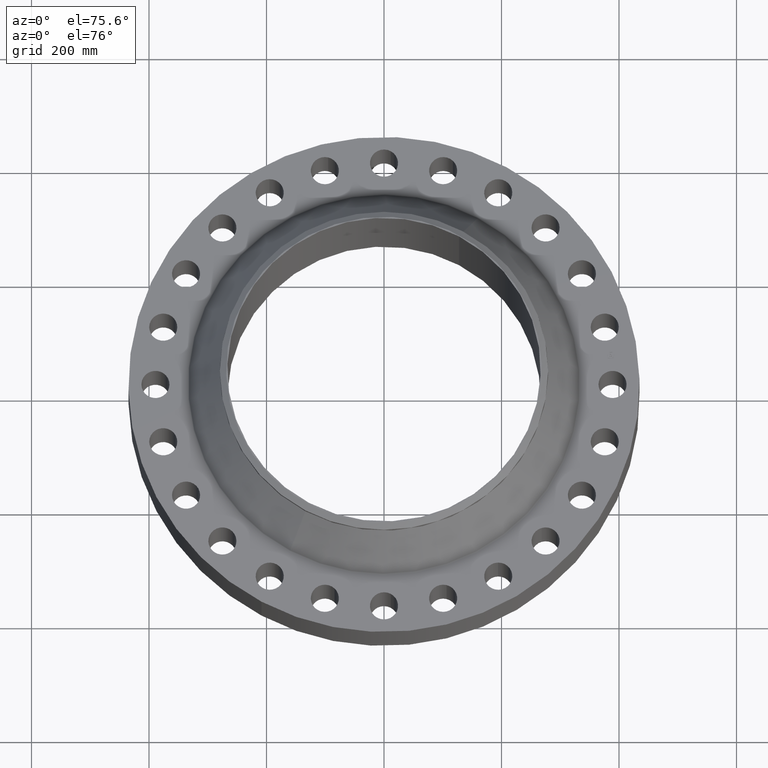
[diagram: clean part render]
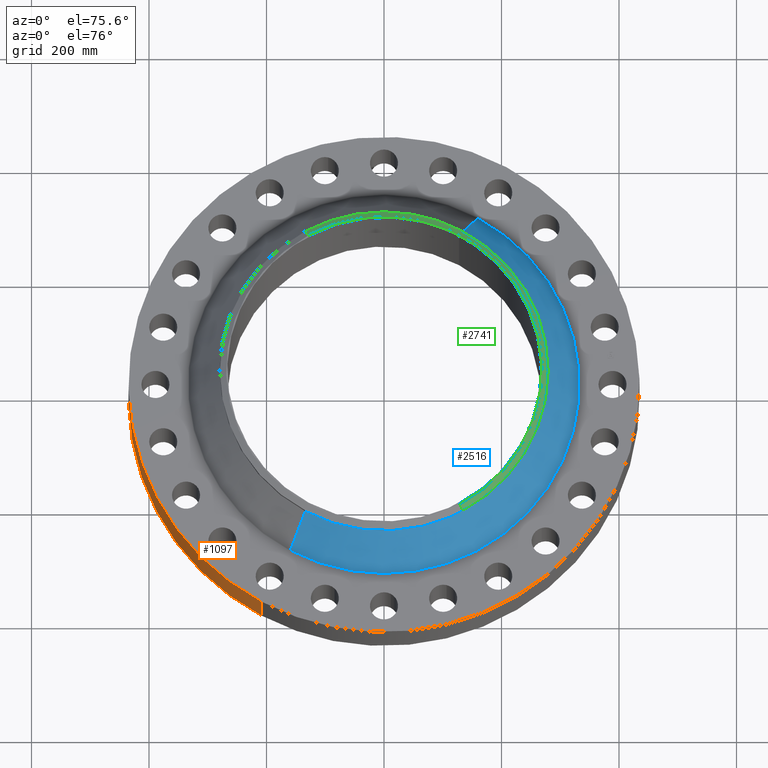
[diagram: same view with three faces highlighted in distinct colors, each labeled with its STEP entity id]
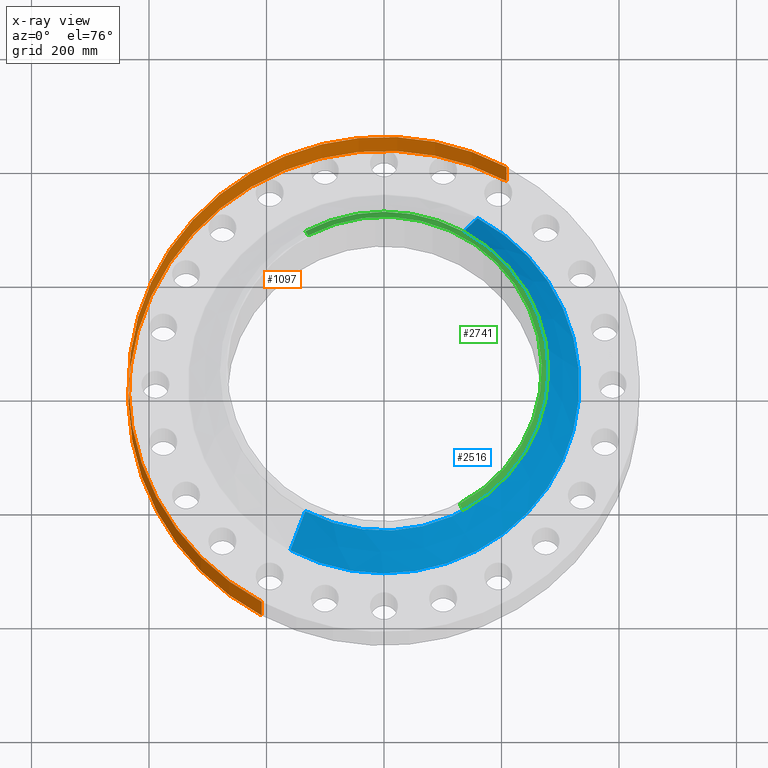
[diagram: x-ray of the same camera — body ghosted, the three highlighted faces saturated]
A machine part, auxiliary view with three faces highlighted in distinct colors.
The next image is the same camera in x-ray (body ghosted, the three faces saturated) — at least one of them is partly hidden behind the body in this view.
Their STEP definitions:

[orange] entity #1097 — the highlighted cylindrical surface (partial cylindrical patch) has radius 434.975 mm, axis along (0, 0, -1).
#131=AXIS2_PLACEMENT_3D('Circle Axis2P3D',#129,#130,$) ;
#607=AXIS2_PLACEMENT_3D('Circle Axis2P3D',#605,#606,$) ;
#1079=AXIS2_PLACEMENT_3D('Cylinder Axis2P3D',#1076,#1077,#1078) ;
#129=CARTESIAN_POINT('Axis2P3D Location',(-4.36642498186E-011,1.65226362775E-011,0.)) ;
#133=CARTESIAN_POINT('Vertex',(-8.21016234866,-15.0286013725,-9.33440551451E-012)) ;
#135=CARTESIAN_POINT('Vertex',(8.21016234865,15.0286013725,-9.33440551451E-012)) ;
#600=CARTESIAN_POINT('Vertex',(8.21016234865,15.0286013725,3.74999999999)) ;
#602=CARTESIAN_POINT('Vertex',(-8.21016234865,-15.0286013725,3.74999999999)) ;
#605=CARTESIAN_POINT('Axis2P3D Location',(-1.28188623321E-011,1.16640905158E-011,3.75000000002)) ;
#1076=CARTESIAN_POINT('Axis2P3D Location',(0.,0.,3.87500000002)) ;
#1081=CARTESIAN_POINT('Line Origine',(-8.21016234865,-15.0286013725,1.87499999999)) ;
#1086=CARTESIAN_POINT('Line Origine',(8.21016234865,15.0286013725,1.87499999999)) ;
#130=DIRECTION('Axis2P3D Direction',(0.,0.,-0.0393700787402)) ;
#606=DIRECTION('Axis2P3D Direction',(0.,0.,-0.0393700787402)) ;
#1077=DIRECTION('Axis2P3D Direction',(0.,0.,-0.0393700787402)) ;
#1078=DIRECTION('Axis2P3D XDirection',(-0.0188750212049,-0.0345504945626,0.)) ;
#1082=DIRECTION('Vector Direction',(0.,0.,-0.0393700787402)) ;
#1087=DIRECTION('Vector Direction',(0.,0.,-0.0393700787402)) ;
#1083=VECTOR('Line Direction',#1082,0.0393700787402) ;
#1088=VECTOR('Line Direction',#1087,0.0393700787402) ;
#1092=ORIENTED_EDGE('',*,*,#137,.F.) ;
#1093=ORIENTED_EDGE('',*,*,#1085,.T.) ;
#1094=ORIENTED_EDGE('',*,*,#609,.T.) ;
#1095=ORIENTED_EDGE('',*,*,#1090,.F.) ;
#1097=ADVANCED_FACE('PartBody',(#1096),#1080,.T.) ;
#132=CIRCLE('generated circle',#131,17.1250000001) ;
#608=CIRCLE('generated circle',#607,17.1250000001) ;
#1080=CYLINDRICAL_SURFACE('generated cylinder',#1079,17.1250000001) ;
#137=EDGE_CURVE('',#134,#136,#132,.T.) ;
#609=EDGE_CURVE('',#603,#601,#608,.T.) ;
#1085=EDGE_CURVE('',#134,#603,#1084,.F.) ;
#1090=EDGE_CURVE('',#136,#601,#1089,.F.) ;
#1091=EDGE_LOOP('',(#1092,#1093,#1094,#1095)) ;
#1096=FACE_OUTER_BOUND('',#1091,.T.) ;
#1084=LINE('Line',#1081,#1083) ;
#1089=LINE('Line',#1086,#1088) ;
#134=VERTEX_POINT('',#133) ;
#136=VERTEX_POINT('',#135) ;
#601=VERTEX_POINT('',#600) ;
#603=VERTEX_POINT('',#602) ;

[blue] entity #2516 — the highlighted conical surface has half-angle 31.701 deg.
#2335=AXIS2_PLACEMENT_3D('Circle Axis2P3D',#2333,#2334,$) ;
#2503=AXIS2_PLACEMENT_3D('Cone Axis2P3D',#2500,#2501,#2502) ;
#2507=AXIS2_PLACEMENT_3D('Circle Axis2P3D',#2505,#2506,$) ;
#2299=CARTESIAN_POINT('Vertex',(-6.2755991667,-11.487407221,3.80694164096)) ;
#2306=CARTESIAN_POINT('Vertex',(6.27559916672,11.487407221,3.80694164094)) ;
#2333=CARTESIAN_POINT('Axis2P3D Location',(0.,0.,3.80694164094)) ;
#2467=CARTESIAN_POINT('Line Origine',(-5.77464004567,-10.5704077009,5.4987385612)) ;
#2471=CARTESIAN_POINT('Vertex',(-5.27368092465,-9.65340818079,7.19053548147)) ;
#2478=CARTESIAN_POINT('Vertex',(5.27368092466,9.6534081808,7.19053548145)) ;
#2481=CARTESIAN_POINT('Line Origine',(5.77464004567,10.5704077009,5.4987385612)) ;
#2500=CARTESIAN_POINT('Axis2P3D Location',(0.,0.,7.19053548147)) ;
#2505=CARTESIAN_POINT('Axis2P3D Location',(0.,0.,7.19053548147)) ;
#2334=DIRECTION('Axis2P3D Direction',(-0.,0.,-0.0393700787402)) ;
#2468=DIRECTION('Vector Direction',(-0.00991856553729,-0.018155812433,-0.033496143548)) ;
#2482=DIRECTION('Vector Direction',(0.00991856553729,0.018155812433,-0.033496143548)) ;
#2501=DIRECTION('Axis2P3D Direction',(0.,0.,-0.0393700787402)) ;
#2502=DIRECTION('Axis2P3D XDirection',(0.0188750212049,0.0345504945626,0.)) ;
#2506=DIRECTION('Axis2P3D Direction',(-0.,0.,-0.0393700787402)) ;
#2469=VECTOR('Line Direction',#2468,0.0393700787402) ;
#2483=VECTOR('Line Direction',#2482,0.0393700787402) ;
#2511=ORIENTED_EDGE('',*,*,#2337,.F.) ;
#2512=ORIENTED_EDGE('',*,*,#2485,.T.) ;
#2513=ORIENTED_EDGE('',*,*,#2509,.T.) ;
#2514=ORIENTED_EDGE('',*,*,#2473,.F.) ;
#2516=ADVANCED_FACE('PartBody',(#2515),#2504,.T.) ;
#2336=CIRCLE('generated circle',#2335,13.0898307691) ;
#2508=CIRCLE('generated circle',#2507,11.) ;
#2504=CONICAL_SURFACE('Cone',#2503,11.,0.553286620585) ;
#2337=EDGE_CURVE('',#2307,#2300,#2336,.T.) ;
#2473=EDGE_CURVE('',#2300,#2472,#2470,.F.) ;
#2485=EDGE_CURVE('',#2307,#2479,#2484,.F.) ;
#2509=EDGE_CURVE('',#2479,#2472,#2508,.T.) ;
#2510=EDGE_LOOP('',(#2511,#2512,#2513,#2514)) ;
#2515=FACE_OUTER_BOUND('',#2510,.T.) ;
#2470=LINE('Line',#2467,#2469) ;
#2484=LINE('Line',#2481,#2483) ;
#2300=VERTEX_POINT('',#2299) ;
#2307=VERTEX_POINT('',#2306) ;
#2472=VERTEX_POINT('',#2471) ;
#2479=VERTEX_POINT('',#2478) ;

[green] entity #2741 — the highlighted conical surface has half-angle 52.5 deg.
#2434=AXIS2_PLACEMENT_3D('Circle Axis2P3D',#2432,#2433,$) ;
#2706=AXIS2_PLACEMENT_3D('Cone Axis2P3D',#2703,#2704,#2705) ;
#2724=AXIS2_PLACEMENT_3D('Circle Axis2P3D',#2722,#2723,$) ;
#2731=AXIS2_PLACEMENT_3D('Circle Axis2P3D',#2729,#2730,$) ;
#2432=CARTESIAN_POINT('Axis2P3D Location',(0.,-1.46651544801E-011,7.75000000003)) ;
#2436=CARTESIAN_POINT('Vertex',(5.07171819777,-9.283717889,7.75000000002)) ;
#2438=CARTESIAN_POINT('Vertex',(-5.07171819777,9.28371788899,7.75000000003)) ;
#2703=CARTESIAN_POINT('Axis2P3D Location',(0.,0.,7.75000000003)) ;
#2708=CARTESIAN_POINT('Line Origine',(-5.17269956122,9.46856303491,7.58837797697)) ;
#2712=CARTESIAN_POINT('Vertex',(-5.27368092465,9.65340818079,7.42675595388)) ;
#2715=CARTESIAN_POINT('Line Origine',(5.17269956122,-9.46856303491,7.58837797697)) ;
#2719=CARTESIAN_POINT('Vertex',(5.27368092465,-9.6534081808,7.42675595392)) ;
#2722=CARTESIAN_POINT('Axis2P3D Location',(0.,0.,7.42675595392)) ;
#2726=CARTESIAN_POINT('Vertex',(5.27368092465,9.65340818079,7.42675595388)) ;
#2729=CARTESIAN_POINT('Axis2P3D Location',(0.,0.,7.42675595392)) ;
#2433=DIRECTION('Axis2P3D Direction',(0.,0.,-0.0393700787402)) ;
#2704=DIRECTION('Axis2P3D Direction',(-0.,-0.,-0.0393700787402)) ;
#2705=DIRECTION('Axis2P3D XDirection',(-0.0188750212049,0.0345504945626,0.)) ;
#2709=DIRECTION('Vector Direction',(-0.014974561121,0.02741075027,-0.023966985394)) ;
#2716=DIRECTION('Vector Direction',(0.014974561121,-0.02741075027,-0.023966985394)) ;
#2723=DIRECTION('Axis2P3D Direction',(-0.,0.,-0.0393700787402)) ;
#2730=DIRECTION('Axis2P3D Direction',(-0.,0.,-0.0393700787402)) ;
#2710=VECTOR('Line Direction',#2709,0.0393700787402) ;
#2717=VECTOR('Line Direction',#2716,0.0393700787402) ;
#2735=ORIENTED_EDGE('',*,*,#2714,.F.) ;
#2736=ORIENTED_EDGE('',*,*,#2440,.F.) ;
#2737=ORIENTED_EDGE('',*,*,#2721,.T.) ;
#2738=ORIENTED_EDGE('',*,*,#2728,.T.) ;
#2739=ORIENTED_EDGE('',*,*,#2733,.F.) ;
#2741=ADVANCED_FACE('PartBody',(#2740),#2707,.T.) ;
#2435=CIRCLE('generated circle',#2434,10.5787401575) ;
#2725=CIRCLE('generated circle',#2724,11.) ;
#2732=CIRCLE('generated circle',#2731,11.) ;
#2707=CONICAL_SURFACE('Cone',#2706,10.5787401575,0.916297857297) ;
#2440=EDGE_CURVE('',#2437,#2439,#2435,.F.) ;
#2714=EDGE_CURVE('',#2439,#2713,#2711,.T.) ;
#2721=EDGE_CURVE('',#2437,#2720,#2718,.T.) ;
#2728=EDGE_CURVE('',#2720,#2727,#2725,.F.) ;
#2733=EDGE_CURVE('',#2713,#2727,#2732,.T.) ;
#2734=EDGE_LOOP('',(#2735,#2736,#2737,#2738,#2739)) ;
#2740=FACE_OUTER_BOUND('',#2734,.T.) ;
#2711=LINE('Line',#2708,#2710) ;
#2718=LINE('Line',#2715,#2717) ;
#2437=VERTEX_POINT('',#2436) ;
#2439=VERTEX_POINT('',#2438) ;
#2713=VERTEX_POINT('',#2712) ;
#2720=VERTEX_POINT('',#2719) ;
#2727=VERTEX_POINT('',#2726) ;